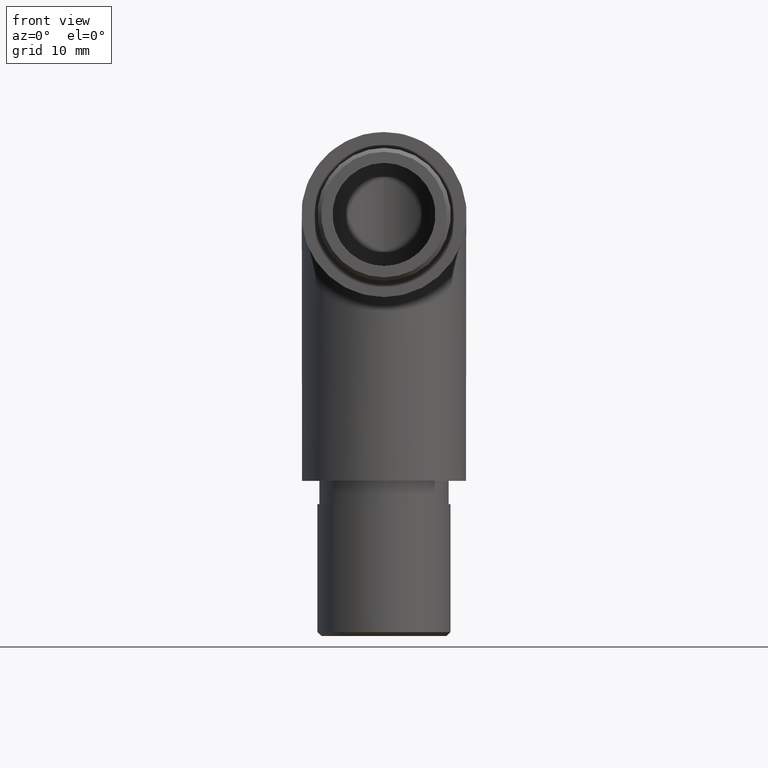
[diagram: clean part render]
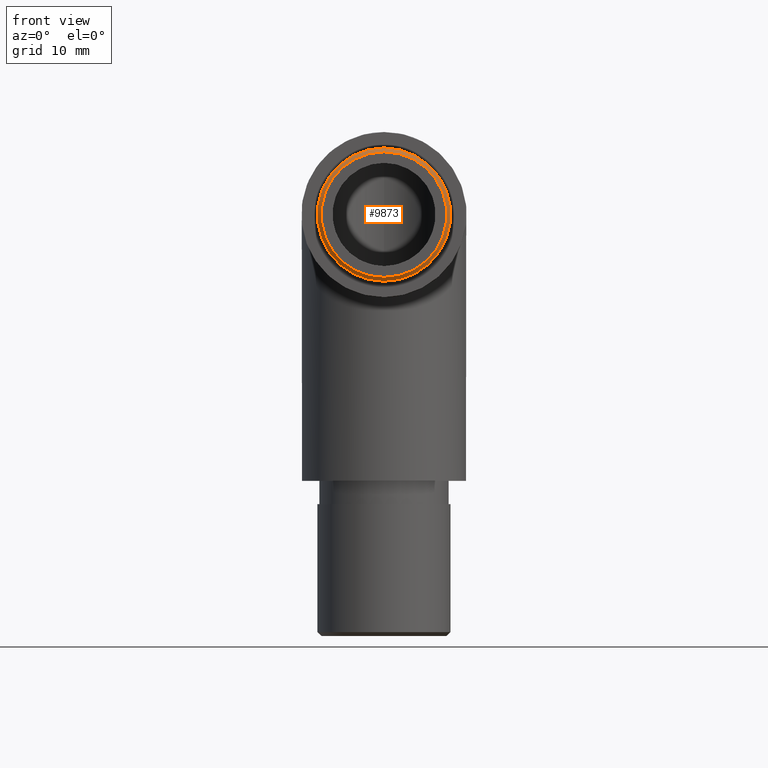
[diagram: same view with one face highlighted and labeled with its STEP entity id]
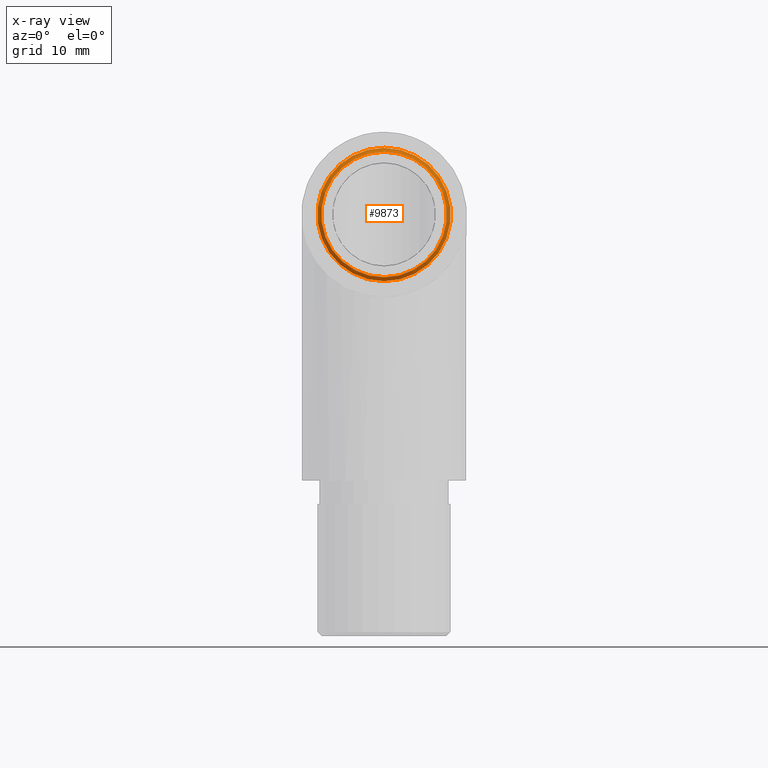
[diagram: x-ray of the same camera — body ghosted, the highlighted face saturated]
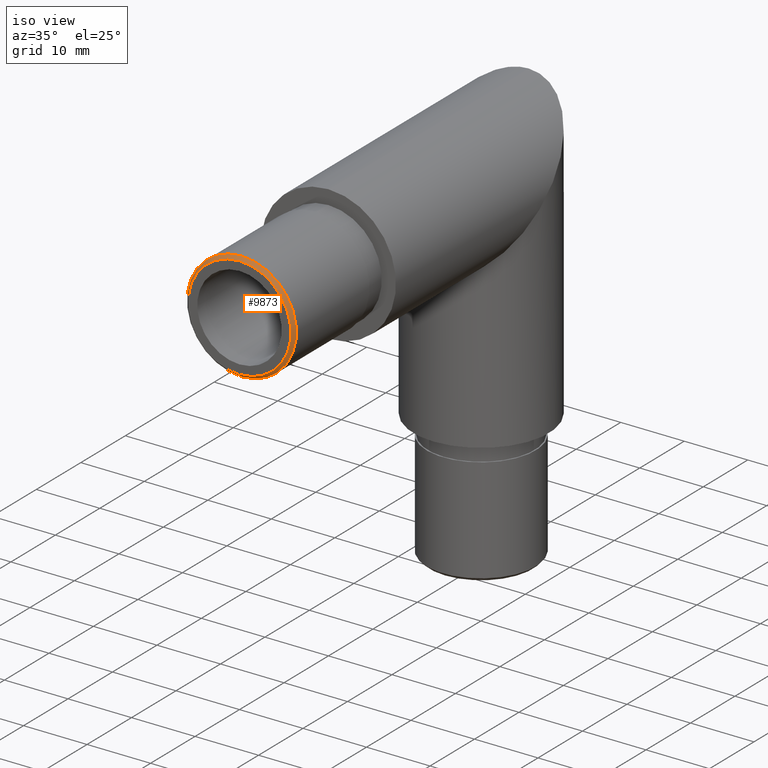
[diagram: same view with one face highlighted and labeled with its STEP entity id]
A machine part, front view. The second image highlights one B-rep face of the part: STEP entity #9873.
The next image is the same camera in x-ray: the body ghosted, the highlighted face saturated — about 0% of this face is hidden behind the body in this view.
A second angle (iso view) of the same face is appended — the face is thin or edge-on in the first view.
In plain terms, the highlighted conical surface has half-angle 45 deg.
Its self-contained STEP definition (entity closure, byte-faithful):
#1389 = CIRCLE ( 'NONE', #8100, 8.099999999999981900 ) ;
#1463 = DIRECTION ( 'NONE',  ( 0.0000000000000000000, 0.0000000000000000000, 1.000000000000000000 ) ) ;
#1512 = VERTEX_POINT ( 'NONE', #3656 ) ;
#1720 = FACE_BOUND ( 'NONE', #5119, .T. ) ;
#2965 = DIRECTION ( 'NONE',  ( 0.0000000000000000000, 0.0000000000000000000, -1.000000000000000000 ) ) ;
#3117 = CARTESIAN_POINT ( 'NONE',  ( 0.0000000000000000000, -19.49999999999997900, 0.0000000000000000000 ) ) ;
#3413 = DIRECTION ( 'NONE',  ( 0.0000000000000000000, -1.000000000000000000, 0.0000000000000000000 ) ) ;
#3476 = CONICAL_SURFACE ( 'NONE', #8500, 8.099999999999981900, 0.7853981633974447300 ) ;
#3656 = CARTESIAN_POINT ( 'NONE',  ( 0.0000000000000000000, -19.49999999999997900, -8.599999999999999600 ) ) ;
#4698 = VERTEX_POINT ( 'NONE', #6791 ) ;
#5119 = EDGE_LOOP ( 'NONE', ( #9085 ) ) ;
#5225 = FACE_OUTER_BOUND ( 'NONE', #8486, .T. ) ;
#6434 = CARTESIAN_POINT ( 'NONE',  ( 0.0000000000000000000, -20.00000000000000000, 0.0000000000000000000 ) ) ;
#6791 = CARTESIAN_POINT ( 'NONE',  ( 0.0000000000000000000, -20.00000000000000000, -8.099999999999981900 ) ) ;
#6960 = ORIENTED_EDGE ( 'NONE', *, *, #7743, .F. ) ;
#7439 = CIRCLE ( 'NONE', #10791, 8.599999999999999600 ) ;
#7657 = DIRECTION ( 'NONE',  ( 0.0000000000000000000, 1.000000000000000000, 0.0000000000000000000 ) ) ;
#7743 = EDGE_CURVE ( 'NONE', #1512, #1512, #7439, .T. ) ;
#8100 = AXIS2_PLACEMENT_3D ( 'NONE', #6434, #3413, #10472 ) ;
#8486 = EDGE_LOOP ( 'NONE', ( #6960 ) ) ;
#8500 = AXIS2_PLACEMENT_3D ( 'NONE', #11717, #7657, #1463 ) ;
#9085 = ORIENTED_EDGE ( 'NONE', *, *, #11049, .F. ) ;
#9873 = ADVANCED_FACE ( 'NONE', ( #5225, #1720 ), #3476, .T. ) ;
#10262 = DIRECTION ( 'NONE',  ( 0.0000000000000000000, 1.000000000000000000, 0.0000000000000000000 ) ) ;
#10472 = DIRECTION ( 'NONE',  ( 0.0000000000000000000, 0.0000000000000000000, -1.000000000000000000 ) ) ;
#10791 = AXIS2_PLACEMENT_3D ( 'NONE', #3117, #10262, #2965 ) ;
#11049 = EDGE_CURVE ( 'NONE', #4698, #4698, #1389, .T. ) ;
#11717 = CARTESIAN_POINT ( 'NONE',  ( 0.0000000000000000000, -20.00000000000000000, 0.0000000000000000000 ) ) ;